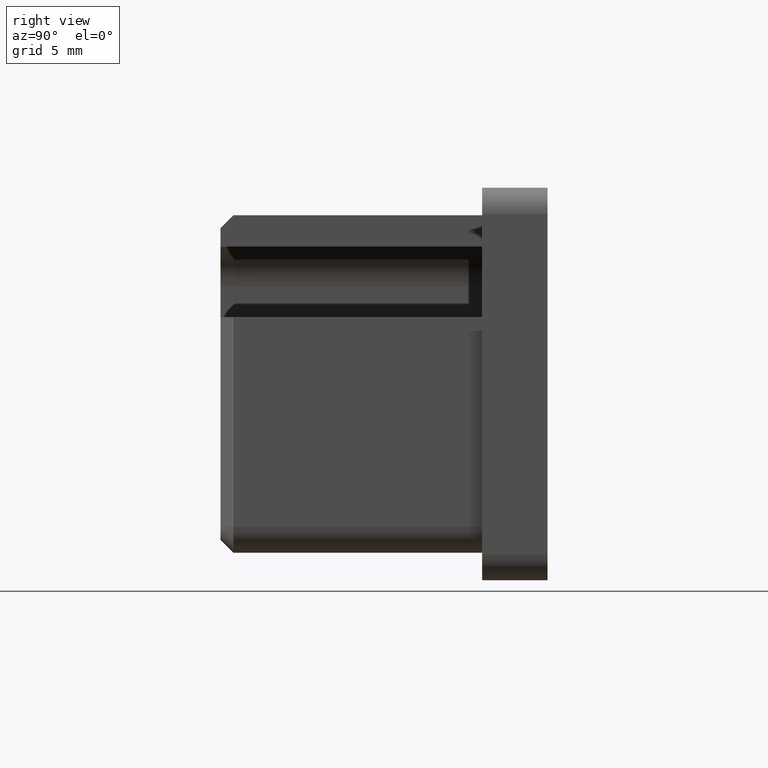
[diagram: clean part render]
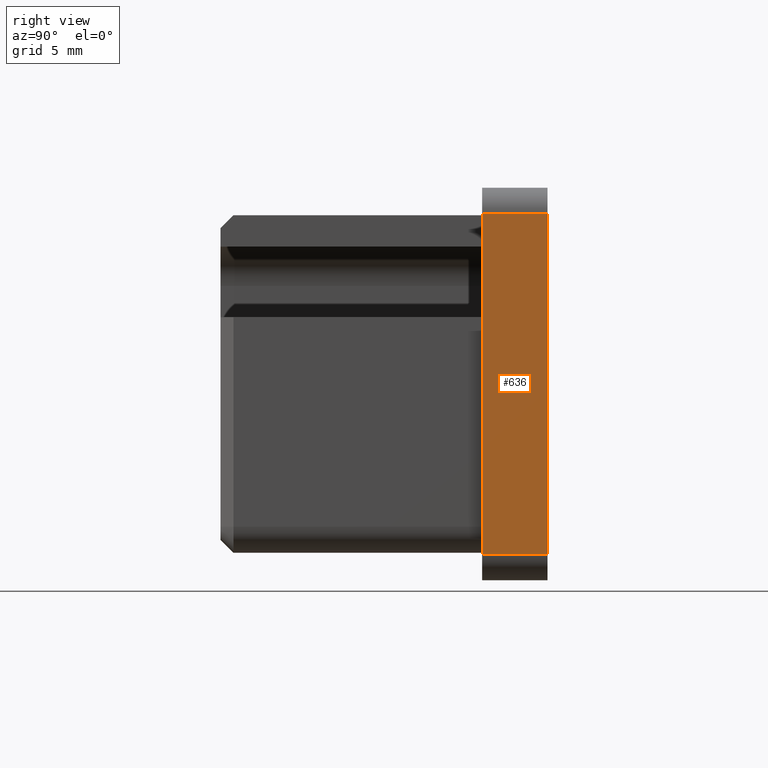
[diagram: same view with one face highlighted and labeled with its STEP entity id]
A machine part, right view. The second image highlights one B-rep face of the part: STEP entity #636.
In plain terms, the highlighted planar face has unit normal (-1, 0, 0).
Its self-contained STEP definition (entity closure, byte-faithful):
#14 = CARTESIAN_POINT ( 'NONE',  ( 19.99999999999999600, 5.000000000000000000, -13.00000000000000400 ) ) ;
#616 = FACE_OUTER_BOUND ( 'NONE', #2867, .T. ) ;
#636 = ADVANCED_FACE ( 'NONE', ( #616 ), #6621, .F. ) ;
#1502 = EDGE_CURVE ( 'NONE', #6437, #10295, #9394, .T. ) ;
#2867 = EDGE_LOOP ( 'NONE', ( #8368, #3813, #9128, #11178 ) ) ;
#3256 = CARTESIAN_POINT ( 'NONE',  ( 19.99999999999999600, 5.000000000000000000, -15.00000000000000400 ) ) ;
#3450 = DIRECTION ( 'NONE',  ( 0.0000000000000000000, -1.000000000000000000, 0.0000000000000000000 ) ) ;
#3813 = ORIENTED_EDGE ( 'NONE', *, *, #1502, .T. ) ;
#4409 = VECTOR ( 'NONE', #11701, 1000.000000000000000 ) ;
#4423 = LINE ( 'NONE', #6025, #10072 ) ;
#4899 = CARTESIAN_POINT ( 'NONE',  ( 19.99999999999999600, 5.000000000000000000, -13.00000000000000400 ) ) ;
#5541 = LINE ( 'NONE', #3256, #4409 ) ;
#5600 = AXIS2_PLACEMENT_3D ( 'NONE', #7874, #9088, #13940 ) ;
#5692 = VERTEX_POINT ( 'NONE', #12172 ) ;
#6025 = CARTESIAN_POINT ( 'NONE',  ( 19.99999999999999600, 0.0000000000000000000, -15.00000000000000400 ) ) ;
#6437 = VERTEX_POINT ( 'NONE', #7661 ) ;
#6621 = PLANE ( 'NONE',  #5600 ) ;
#7068 = CARTESIAN_POINT ( 'NONE',  ( 19.99999999999999600, 5.000000000000000000, 12.99999999999999500 ) ) ;
#7661 = CARTESIAN_POINT ( 'NONE',  ( 19.99999999999999600, 0.0000000000000000000, -13.00000000000000400 ) ) ;
#7874 = CARTESIAN_POINT ( 'NONE',  ( 19.99999999999999600, 5.000000000000000000, -15.00000000000000400 ) ) ;
#8075 = VECTOR ( 'NONE', #8395, 1000.000000000000000 ) ;
#8368 = ORIENTED_EDGE ( 'NONE', *, *, #8494, .T. ) ;
#8395 = DIRECTION ( 'NONE',  ( -0.0000000000000000000, 1.000000000000000000, -0.0000000000000000000 ) ) ;
#8486 = VERTEX_POINT ( 'NONE', #7068 ) ;
#8494 = EDGE_CURVE ( 'NONE', #5692, #6437, #4423, .T. ) ;
#9088 = DIRECTION ( 'NONE',  ( -1.000000000000000000, 0.0000000000000000000, 0.0000000000000000000 ) ) ;
#9128 = ORIENTED_EDGE ( 'NONE', *, *, #9514, .F. ) ;
#9394 = LINE ( 'NONE', #14, #8075 ) ;
#9514 = EDGE_CURVE ( 'NONE', #8486, #10295, #5541, .T. ) ;
#10072 = VECTOR ( 'NONE', #15497, 1000.000000000000000 ) ;
#10295 = VERTEX_POINT ( 'NONE', #4899 ) ;
#10660 = CARTESIAN_POINT ( 'NONE',  ( 19.99999999999999600, 5.000000000000000000, 12.99999999999999500 ) ) ;
#11178 = ORIENTED_EDGE ( 'NONE', *, *, #15114, .T. ) ;
#11701 = DIRECTION ( 'NONE',  ( -0.0000000000000000000, -0.0000000000000000000, -1.000000000000000000 ) ) ;
#12172 = CARTESIAN_POINT ( 'NONE',  ( 19.99999999999999600, 0.0000000000000000000, 12.99999999999999500 ) ) ;
#12680 = LINE ( 'NONE', #10660, #13045 ) ;
#13045 = VECTOR ( 'NONE', #3450, 1000.000000000000000 ) ;
#13940 = DIRECTION ( 'NONE',  ( 0.0000000000000000000, 0.0000000000000000000, 1.000000000000000000 ) ) ;
#15114 = EDGE_CURVE ( 'NONE', #8486, #5692, #12680, .T. ) ;
#15497 = DIRECTION ( 'NONE',  ( -0.0000000000000000000, -0.0000000000000000000, -1.000000000000000000 ) ) ;